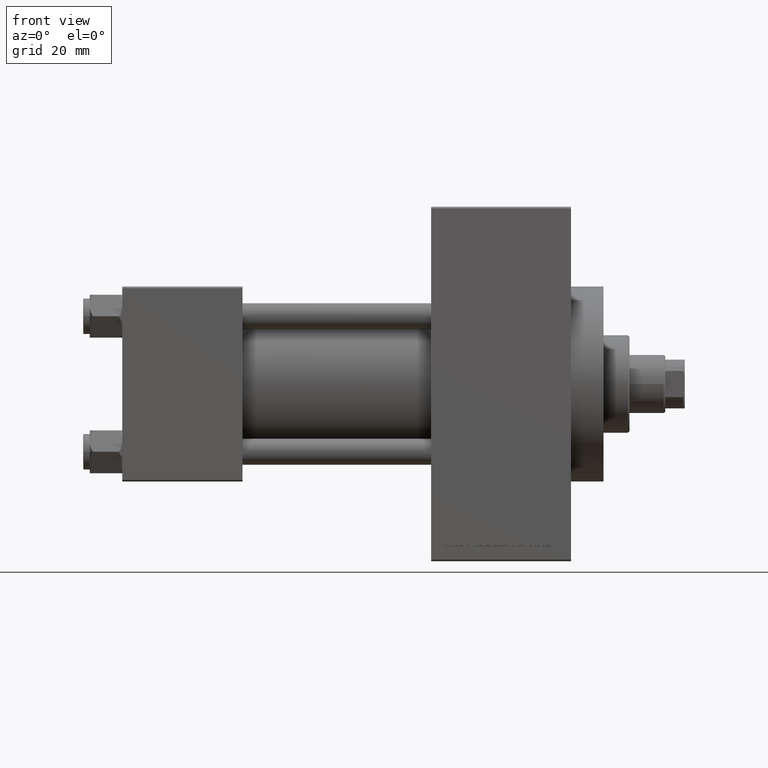
[diagram: clean part render]
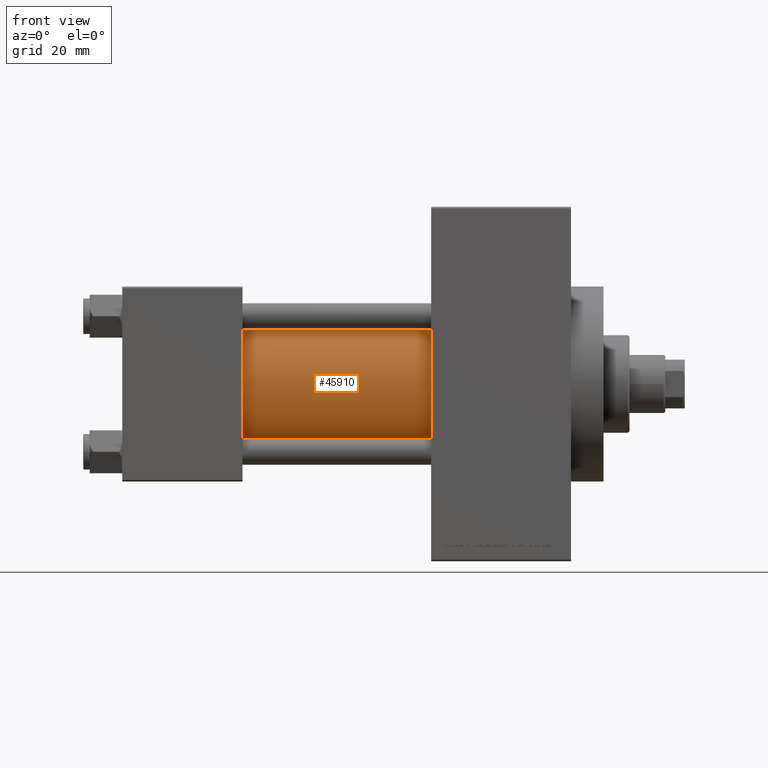
[diagram: same view with one face highlighted and labeled with its STEP entity id]
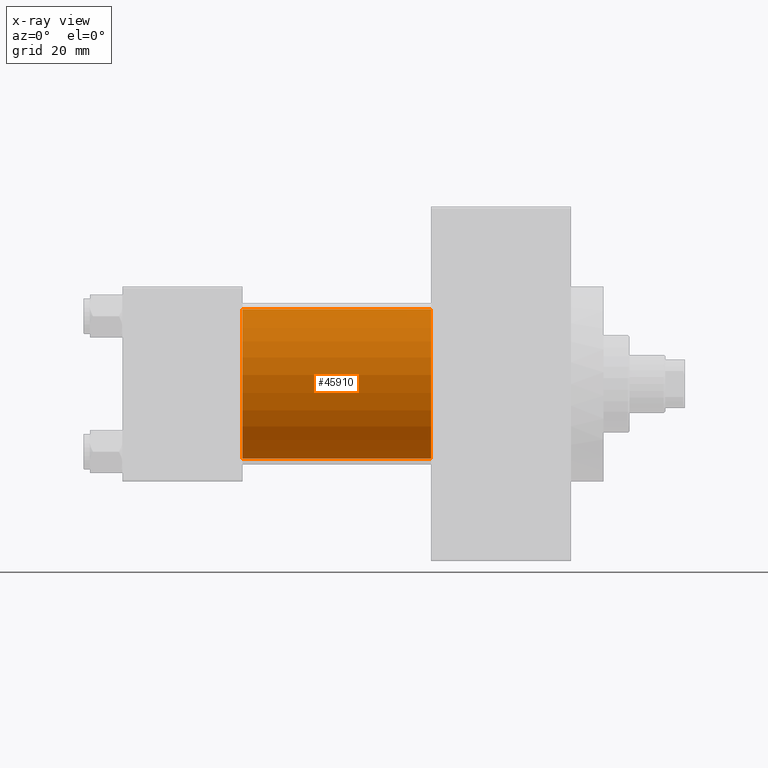
[diagram: x-ray of the same camera — body ghosted, the highlighted face saturated]
A machine part, front view. The second image highlights one B-rep face of the part: STEP entity #45910.
The next image is the same camera in x-ray: the body ghosted, the highlighted face saturated — about 0% of this face is hidden behind the body in this view.
In plain terms, the highlighted cylindrical surface (partial cylindrical patch) has radius 23 mm, axis along (-1, -0, -0).
Its self-contained STEP definition (entity closure, byte-faithful):
#223 = CARTESIAN_POINT ( 'NONE',  ( 37.00000000000000000, 2.146024240737012665E-16, -23.00000000000000000 ) ) ;
#2046 = DIRECTION ( 'NONE',  ( 1.000000000000000000, -0.000000000000000000, 0.000000000000000000 ) ) ;
#2136 = VECTOR ( 'NONE', #20395, 1000.000000000000000 ) ;
#4291 = CARTESIAN_POINT ( 'NONE',  ( 95.00000000000000000, 2.146024240737012665E-16, -23.00000000000000000 ) ) ;
#6346 = ORIENTED_EDGE ( 'NONE', *, *, #21175, .F. ) ;
#7478 = EDGE_CURVE ( 'NONE', #38143, #11205, #32610, .T. ) ;
#8590 = AXIS2_PLACEMENT_3D ( 'NONE', #28723, #2046, #10524 ) ;
#10524 = DIRECTION ( 'NONE',  ( 0.000000000000000000, 0.000000000000000000, 1.000000000000000000 ) ) ;
#11205 = VERTEX_POINT ( 'NONE', #18460 ) ;
#12035 = CYLINDRICAL_SURFACE ( 'NONE', #14420, 23.00000000000000000 ) ;
#12961 = DIRECTION ( 'NONE',  ( -1.000000000000000000, -0.000000000000000000, -0.000000000000000000 ) ) ;
#14420 = AXIS2_PLACEMENT_3D ( 'NONE', #34224, #19031, #49194 ) ;
#17154 = CARTESIAN_POINT ( 'NONE',  ( 95.00000000000000000, -2.602085213965210642E-15, 23.00000000000000000 ) ) ;
#18460 = CARTESIAN_POINT ( 'NONE',  ( 37.00000000000000000, -2.602085213965210642E-15, 23.00000000000000000 ) ) ;
#19031 = DIRECTION ( 'NONE',  ( -1.000000000000000000, -0.000000000000000000, -0.000000000000000000 ) ) ;
#19934 = LINE ( 'NONE', #35136, #28312 ) ;
#20395 = DIRECTION ( 'NONE',  ( -1.000000000000000000, -0.000000000000000000, -0.000000000000000000 ) ) ;
#21175 = EDGE_CURVE ( 'NONE', #38143, #42410, #36010, .T. ) ;
#22643 = ORIENTED_EDGE ( 'NONE', *, *, #7478, .T. ) ;
#28312 = VECTOR ( 'NONE', #12961, 1000.000000000000000 ) ;
#28723 = CARTESIAN_POINT ( 'NONE',  ( 37.00000000000000000, -2.602085213965210642E-15, 0.000000000000000000 ) ) ;
#30717 = EDGE_LOOP ( 'NONE', ( #43262, #6346, #22643, #32550 ) ) ;
#32550 = ORIENTED_EDGE ( 'NONE', *, *, #37866, .T. ) ;
#32574 = EDGE_CURVE ( 'NONE', #42410, #48867, #19934, .T. ) ;
#32610 = LINE ( 'NONE', #17154, #2136 ) ;
#34224 = CARTESIAN_POINT ( 'NONE',  ( 95.00000000000000000, -2.602085213965210642E-15, 0.000000000000000000 ) ) ;
#35136 = CARTESIAN_POINT ( 'NONE',  ( 95.00000000000000000, 2.146024240737012665E-16, -23.00000000000000000 ) ) ;
#35680 = CIRCLE ( 'NONE', #8590, 23.00000000000000000 ) ;
#36010 = CIRCLE ( 'NONE', #42350, 23.00000000000000000 ) ;
#37866 = EDGE_CURVE ( 'NONE', #11205, #48867, #35680, .T. ) ;
#38143 = VERTEX_POINT ( 'NONE', #46858 ) ;
#42350 = AXIS2_PLACEMENT_3D ( 'NONE', #45159, #44437, #48893 ) ;
#42410 = VERTEX_POINT ( 'NONE', #4291 ) ;
#43262 = ORIENTED_EDGE ( 'NONE', *, *, #32574, .F. ) ;
#44437 = DIRECTION ( 'NONE',  ( 1.000000000000000000, 0.000000000000000000, 0.000000000000000000 ) ) ;
#45159 = CARTESIAN_POINT ( 'NONE',  ( 95.00000000000000000, -2.602085213965210642E-15, 0.000000000000000000 ) ) ;
#45211 = FACE_OUTER_BOUND ( 'NONE', #30717, .T. ) ;
#45910 = ADVANCED_FACE ( 'NONE', ( #45211 ), #12035, .T. ) ;
#46858 = CARTESIAN_POINT ( 'NONE',  ( 95.00000000000000000, -2.602085213965210642E-15, 23.00000000000000000 ) ) ;
#48867 = VERTEX_POINT ( 'NONE', #223 ) ;
#48893 = DIRECTION ( 'NONE',  ( 0.000000000000000000, 0.000000000000000000, -1.000000000000000000 ) ) ;
#49194 = DIRECTION ( 'NONE',  ( 0.000000000000000000, 0.000000000000000000, 1.000000000000000000 ) ) ;